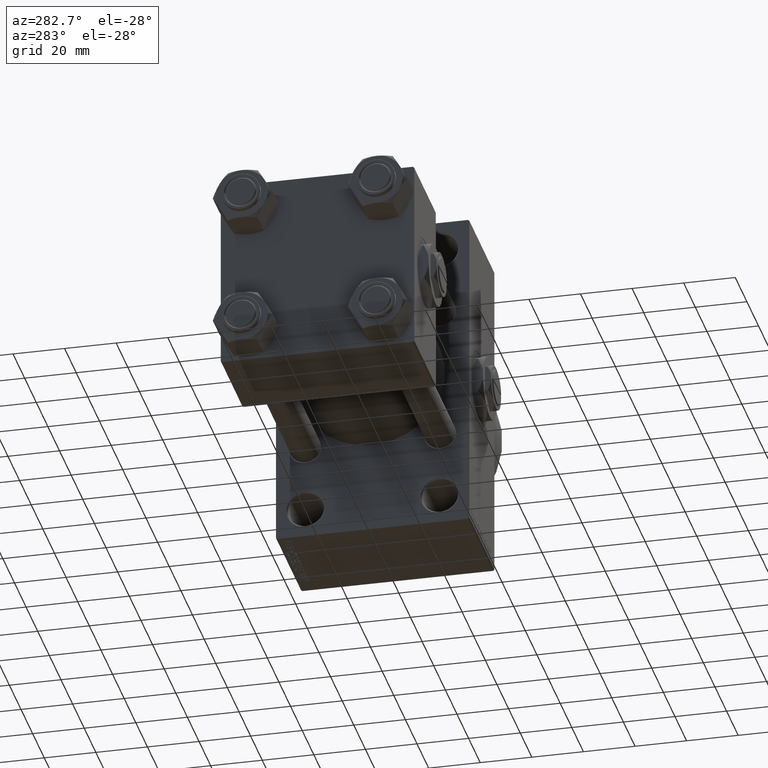
[diagram: clean part render]
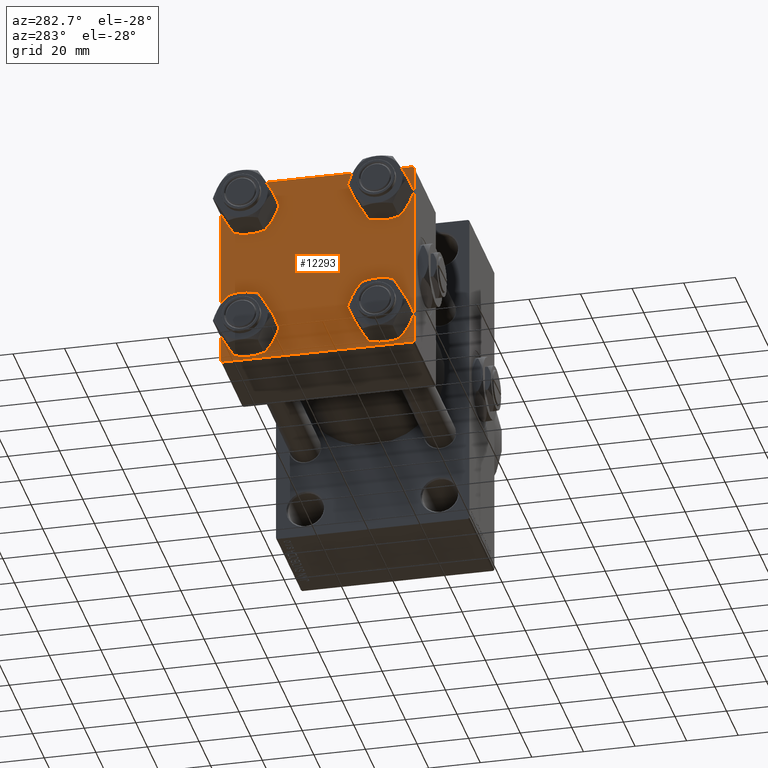
[diagram: same view with one face highlighted and labeled with its STEP entity id]
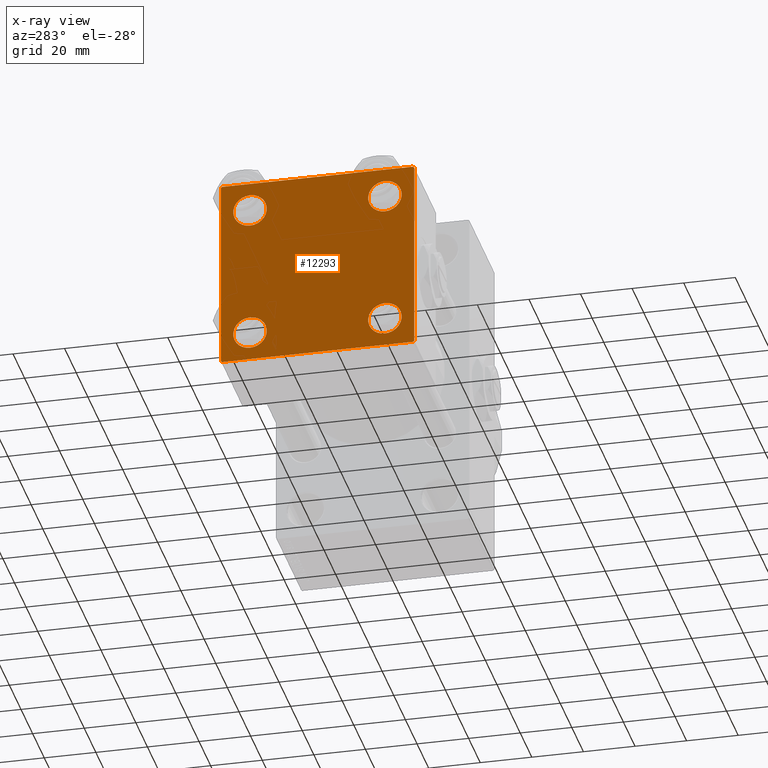
[diagram: x-ray of the same camera — body ghosted, the highlighted face saturated]
A machine part, auxiliary view. The second image highlights one B-rep face of the part: STEP entity #12293.
The next image is the same camera in x-ray: the body ghosted, the highlighted face saturated — about 0% of this face is hidden behind the body in this view.
In plain terms, the highlighted planar face has unit normal (-1, 0, 0).
Its self-contained STEP definition (entity closure, byte-faithful):
#125 = DIRECTION ( 'NONE',  ( 0.000000000000000000, 9.251858538542971581E-17, -1.000000000000000000 ) ) ;
#215 = DIRECTION ( 'NONE',  ( 0.000000000000000000, 0.000000000000000000, 1.000000000000000000 ) ) ;
#319 = ORIENTED_EDGE ( 'NONE', *, *, #36964, .T. ) ;
#346 = CARTESIAN_POINT ( 'NONE',  ( 0.000000000000000000, 37.49999999999999289, -37.50000000000000000 ) ) ;
#353 = LINE ( 'NONE', #15723, #43957 ) ;
#386 = EDGE_CURVE ( 'NONE', #18418, #16731, #14648, .T. ) ;
#393 = EDGE_LOOP ( 'NONE', ( #8873, #31301 ) ) ;
#627 = EDGE_CURVE ( 'NONE', #47455, #7098, #22640, .T. ) ;
#712 = DIRECTION ( 'NONE',  ( 1.000000000000000000, -0.000000000000000000, 0.000000000000000000 ) ) ;
#822 = LINE ( 'NONE', #24480, #38714 ) ;
#926 = AXIS2_PLACEMENT_3D ( 'NONE', #9315, #25420, #6048 ) ;
#1008 = ORIENTED_EDGE ( 'NONE', *, *, #29221, .T. ) ;
#1362 = DIRECTION ( 'NONE',  ( 1.000000000000000000, -0.000000000000000000, 0.000000000000000000 ) ) ;
#1428 = CARTESIAN_POINT ( 'NONE',  ( 0.000000000000000000, -37.50000000000000000, -37.00000000000003553 ) ) ;
#1781 = AXIS2_PLACEMENT_3D ( 'NONE', #47323, #24698, #35761 ) ;
#1979 = FACE_BOUND ( 'NONE', #40593, .T. ) ;
#2988 = EDGE_CURVE ( 'NONE', #7098, #47455, #11503, .T. ) ;
#3157 = ORIENTED_EDGE ( 'NONE', *, *, #41333, .T. ) ;
#4506 = CIRCLE ( 'NONE', #43055, 6.500000000000023093 ) ;
#4902 = EDGE_CURVE ( 'NONE', #5521, #32452, #29141, .T. ) ;
#4998 = CARTESIAN_POINT ( 'NONE',  ( 0.000000000000000000, -26.14999999999999147, 32.65000000000003411 ) ) ;
#5475 = DIRECTION ( 'NONE',  ( 0.000000000000000000, 0.000000000000000000, 1.000000000000000000 ) ) ;
#5521 = VERTEX_POINT ( 'NONE', #47948 ) ;
#5930 = AXIS2_PLACEMENT_3D ( 'NONE', #24039, #1362, #47403 ) ;
#6048 = DIRECTION ( 'NONE',  ( 0.000000000000000000, 0.000000000000000000, 1.000000000000000000 ) ) ;
#6110 = VERTEX_POINT ( 'NONE', #22105 ) ;
#6145 = EDGE_LOOP ( 'NONE', ( #32078, #13589 ) ) ;
#6362 = DIRECTION ( 'NONE',  ( 1.000000000000000000, -0.000000000000000000, 0.000000000000000000 ) ) ;
#6380 = LINE ( 'NONE', #21725, #19014 ) ;
#6516 = FACE_OUTER_BOUND ( 'NONE', #23099, .T. ) ;
#7098 = VERTEX_POINT ( 'NONE', #20177 ) ;
#7684 = CARTESIAN_POINT ( 'NONE',  ( 0.000000000000000000, -37.50000000000000711, 37.49999999999999289 ) ) ;
#8271 = CARTESIAN_POINT ( 'NONE',  ( 0.000000000000000000, -26.14999999999999147, 26.15000000000000924 ) ) ;
#8682 = DIRECTION ( 'NONE',  ( 0.000000000000000000, 0.7071067811865474617, -0.7071067811865474617 ) ) ;
#8818 = CARTESIAN_POINT ( 'NONE',  ( 0.000000000000000000, -26.14999999999999147, 19.64999999999999147 ) ) ;
#8873 = ORIENTED_EDGE ( 'NONE', *, *, #21409, .T. ) ;
#9145 = DIRECTION ( 'NONE',  ( -0.000000000000000000, 0.7071067811865474617, 0.7071067811865474617 ) ) ;
#9315 = CARTESIAN_POINT ( 'NONE',  ( 0.000000000000000000, 26.14999999999999858, 26.15000000000000213 ) ) ;
#10466 = CARTESIAN_POINT ( 'NONE',  ( 0.000000000000000000, 36.99999999999997868, -37.50000000000000000 ) ) ;
#10502 = CARTESIAN_POINT ( 'NONE',  ( 0.000000000000000000, 37.49999999999999289, -36.99999999999998579 ) ) ;
#10798 = VERTEX_POINT ( 'NONE', #28567 ) ;
#11503 = CIRCLE ( 'NONE', #49267, 6.500000000000023093 ) ;
#12293 = ADVANCED_FACE ( 'NONE', ( #1979, #25655, #48028, #21861, #6516 ), #48267, .T. ) ;
#12683 = LINE ( 'NONE', #32288, #48701 ) ;
#13384 = CIRCLE ( 'NONE', #18187, 6.500000000000015987 ) ;
#13553 = EDGE_CURVE ( 'NONE', #6110, #41762, #13384, .T. ) ;
#13589 = ORIENTED_EDGE ( 'NONE', *, *, #13553, .T. ) ;
#13833 = DIRECTION ( 'NONE',  ( -0.000000000000000000, 0.000000000000000000, 1.000000000000000000 ) ) ;
#14648 = CIRCLE ( 'NONE', #42720, 6.500000000000023093 ) ;
#14961 = CARTESIAN_POINT ( 'NONE',  ( 0.000000000000000000, 26.14999999999999858, 26.15000000000000213 ) ) ;
#14962 = VERTEX_POINT ( 'NONE', #43925 ) ;
#15723 = CARTESIAN_POINT ( 'NONE',  ( 0.000000000000000000, 37.49999999999999289, 37.50000000000000000 ) ) ;
#16124 = VERTEX_POINT ( 'NONE', #1428 ) ;
#16298 = CARTESIAN_POINT ( 'NONE',  ( 0.000000000000000000, -37.00000000000002132, -37.50000000000000711 ) ) ;
#16731 = VERTEX_POINT ( 'NONE', #8818 ) ;
#18187 = AXIS2_PLACEMENT_3D ( 'NONE', #20571, #27875, #5475 ) ;
#18418 = VERTEX_POINT ( 'NONE', #4998 ) ;
#19014 = VECTOR ( 'NONE', #37039, 1000.000000000000114 ) ;
#20177 = CARTESIAN_POINT ( 'NONE',  ( 0.000000000000000000, 26.14999999999999858, 32.65000000000002700 ) ) ;
#20316 = VECTOR ( 'NONE', #8682, 1000.000000000000114 ) ;
#20571 = CARTESIAN_POINT ( 'NONE',  ( 0.000000000000000000, 26.14999999999999858, -26.15000000000000213 ) ) ;
#20722 = EDGE_CURVE ( 'NONE', #10798, #16124, #35360, .T. ) ;
#21409 = EDGE_CURVE ( 'NONE', #32452, #5521, #44014, .T. ) ;
#21725 = CARTESIAN_POINT ( 'NONE',  ( 0.000000000000000000, 37.24999999999998579, -37.24999999999998579 ) ) ;
#21861 = FACE_BOUND ( 'NONE', #34094, .T. ) ;
#22105 = CARTESIAN_POINT ( 'NONE',  ( 0.000000000000000000, 26.14999999999999858, -32.65000000000001990 ) ) ;
#22127 = CARTESIAN_POINT ( 'NONE',  ( 0.000000000000000000, -26.14999999999999147, -19.64999999999999503 ) ) ;
#22640 = CIRCLE ( 'NONE', #926, 6.500000000000023093 ) ;
#23026 = VERTEX_POINT ( 'NONE', #35344 ) ;
#23073 = CARTESIAN_POINT ( 'NONE',  ( 0.000000000000000000, 26.14999999999999858, -19.64999999999998792 ) ) ;
#23099 = EDGE_LOOP ( 'NONE', ( #35434, #3157, #40161, #48579, #26201, #319, #28452, #1008 ) ) ;
#23426 = VERTEX_POINT ( 'NONE', #16298 ) ;
#24039 = CARTESIAN_POINT ( 'NONE',  ( 0.000000000000000000, 26.14999999999999858, -26.15000000000000213 ) ) ;
#24278 = ORIENTED_EDGE ( 'NONE', *, *, #386, .T. ) ;
#24480 = CARTESIAN_POINT ( 'NONE',  ( 0.000000000000000000, 37.49999999999999289, 37.50000000000000000 ) ) ;
#24698 = DIRECTION ( 'NONE',  ( 1.000000000000000000, -0.000000000000000000, 0.000000000000000000 ) ) ;
#24968 = EDGE_CURVE ( 'NONE', #23026, #47375, #822, .T. ) ;
#25420 = DIRECTION ( 'NONE',  ( 1.000000000000000000, -0.000000000000000000, 0.000000000000000000 ) ) ;
#25583 = CARTESIAN_POINT ( 'NONE',  ( 0.000000000000000000, -37.00000000000000711, 37.49999999999999289 ) ) ;
#25655 = FACE_BOUND ( 'NONE', #393, .T. ) ;
#25853 = DIRECTION ( 'NONE',  ( 0.000000000000000000, -0.7071067811865524577, 0.7071067811865426878 ) ) ;
#26038 = DIRECTION ( 'NONE',  ( 0.000000000000000000, 0.000000000000000000, 1.000000000000000000 ) ) ;
#26201 = ORIENTED_EDGE ( 'NONE', *, *, #20722, .F. ) ;
#26332 = VECTOR ( 'NONE', #125, 1000.000000000000000 ) ;
#26346 = CARTESIAN_POINT ( 'NONE',  ( 0.000000000000000000, -37.24999999999975842, -37.25000000000027001 ) ) ;
#26454 = DIRECTION ( 'NONE',  ( 1.000000000000000000, -0.000000000000000000, 0.000000000000000000 ) ) ;
#27196 = CARTESIAN_POINT ( 'NONE',  ( 0.000000000000000000, -26.14999999999999147, -26.15000000000000924 ) ) ;
#27612 = CIRCLE ( 'NONE', #5930, 6.500000000000015987 ) ;
#27875 = DIRECTION ( 'NONE',  ( 1.000000000000000000, -0.000000000000000000, 0.000000000000000000 ) ) ;
#28452 = ORIENTED_EDGE ( 'NONE', *, *, #42187, .F. ) ;
#28474 = ORIENTED_EDGE ( 'NONE', *, *, #627, .T. ) ;
#28567 = CARTESIAN_POINT ( 'NONE',  ( 0.000000000000000000, -37.50000000000000711, 36.99999999999999289 ) ) ;
#29141 = CIRCLE ( 'NONE', #1781, 6.500000000000015987 ) ;
#29221 = EDGE_CURVE ( 'NONE', #14962, #23026, #35353, .T. ) ;
#29248 = CARTESIAN_POINT ( 'NONE',  ( 0.000000000000000000, -26.14999999999999147, 26.15000000000000924 ) ) ;
#30533 = VECTOR ( 'NONE', #25853, 1000.000000000000000 ) ;
#31048 = VECTOR ( 'NONE', #38332, 1000.000000000000000 ) ;
#31301 = ORIENTED_EDGE ( 'NONE', *, *, #4902, .T. ) ;
#31529 = DIRECTION ( 'NONE',  ( 0.000000000000000000, 0.000000000000000000, -1.000000000000000000 ) ) ;
#31756 = EDGE_CURVE ( 'NONE', #41762, #6110, #27612, .T. ) ;
#32078 = ORIENTED_EDGE ( 'NONE', *, *, #31756, .T. ) ;
#32288 = CARTESIAN_POINT ( 'NONE',  ( -0.000000000000000000, -37.25000000000000000, 37.25000000000000000 ) ) ;
#32452 = VERTEX_POINT ( 'NONE', #22127 ) ;
#32591 = AXIS2_PLACEMENT_3D ( 'NONE', #44244, #48510, #13833 ) ;
#34094 = EDGE_LOOP ( 'NONE', ( #34566, #28474 ) ) ;
#34566 = ORIENTED_EDGE ( 'NONE', *, *, #2988, .T. ) ;
#35083 = DIRECTION ( 'NONE',  ( 0.000000000000000000, -1.000000000000000000, -9.251858538542971581E-17 ) ) ;
#35344 = CARTESIAN_POINT ( 'NONE',  ( 0.000000000000000000, 37.49999999999999289, 37.00000000000000000 ) ) ;
#35353 = LINE ( 'NONE', #42875, #20316 ) ;
#35360 = LINE ( 'NONE', #7684, #26332 ) ;
#35434 = ORIENTED_EDGE ( 'NONE', *, *, #24968, .T. ) ;
#35761 = DIRECTION ( 'NONE',  ( 0.000000000000000000, 0.000000000000000000, 1.000000000000000000 ) ) ;
#36848 = VERTEX_POINT ( 'NONE', #25583 ) ;
#36964 = EDGE_CURVE ( 'NONE', #10798, #36848, #12683, .T. ) ;
#37039 = DIRECTION ( 'NONE',  ( -0.000000000000000000, -0.7071067811865474617, -0.7071067811865474617 ) ) ;
#38261 = VERTEX_POINT ( 'NONE', #10466 ) ;
#38332 = DIRECTION ( 'NONE',  ( 0.000000000000000000, -1.000000000000000000, -9.251858538542972814E-17 ) ) ;
#38714 = VECTOR ( 'NONE', #31529, 1000.000000000000000 ) ;
#40161 = ORIENTED_EDGE ( 'NONE', *, *, #40996, .T. ) ;
#40250 = EDGE_CURVE ( 'NONE', #16731, #18418, #4506, .T. ) ;
#40553 = DIRECTION ( 'NONE',  ( 0.000000000000000000, 0.000000000000000000, 1.000000000000000000 ) ) ;
#40593 = EDGE_LOOP ( 'NONE', ( #24278, #45869 ) ) ;
#40929 = LINE ( 'NONE', #26346, #30533 ) ;
#40996 = EDGE_CURVE ( 'NONE', #38261, #23426, #49408, .T. ) ;
#41333 = EDGE_CURVE ( 'NONE', #47375, #38261, #6380, .T. ) ;
#41762 = VERTEX_POINT ( 'NONE', #23073 ) ;
#41770 = DIRECTION ( 'NONE',  ( 0.000000000000000000, 0.000000000000000000, 1.000000000000000000 ) ) ;
#42187 = EDGE_CURVE ( 'NONE', #14962, #36848, #353, .T. ) ;
#42720 = AXIS2_PLACEMENT_3D ( 'NONE', #29248, #6362, #40553 ) ;
#42875 = CARTESIAN_POINT ( 'NONE',  ( 0.000000000000000000, 37.24999999999999289, 37.24999999999999289 ) ) ;
#43055 = AXIS2_PLACEMENT_3D ( 'NONE', #8271, #712, #215 ) ;
#43925 = CARTESIAN_POINT ( 'NONE',  ( 0.000000000000000000, 36.99999999999999289, 37.50000000000000000 ) ) ;
#43957 = VECTOR ( 'NONE', #35083, 1000.000000000000000 ) ;
#44014 = CIRCLE ( 'NONE', #47211, 6.500000000000015987 ) ;
#44244 = CARTESIAN_POINT ( 'NONE',  ( 0.000000000000000000, 0.000000000000000000, 0.000000000000000000 ) ) ;
#44640 = DIRECTION ( 'NONE',  ( 1.000000000000000000, -0.000000000000000000, 0.000000000000000000 ) ) ;
#45869 = ORIENTED_EDGE ( 'NONE', *, *, #40250, .T. ) ;
#46668 = CARTESIAN_POINT ( 'NONE',  ( 0.000000000000000000, 26.14999999999999858, 19.64999999999998437 ) ) ;
#47211 = AXIS2_PLACEMENT_3D ( 'NONE', #27196, #26454, #41770 ) ;
#47323 = CARTESIAN_POINT ( 'NONE',  ( 0.000000000000000000, -26.14999999999999147, -26.15000000000000924 ) ) ;
#47375 = VERTEX_POINT ( 'NONE', #10502 ) ;
#47403 = DIRECTION ( 'NONE',  ( 0.000000000000000000, 0.000000000000000000, 1.000000000000000000 ) ) ;
#47455 = VERTEX_POINT ( 'NONE', #46668 ) ;
#47948 = CARTESIAN_POINT ( 'NONE',  ( 0.000000000000000000, -26.14999999999999147, -32.65000000000002700 ) ) ;
#48028 = FACE_BOUND ( 'NONE', #6145, .T. ) ;
#48114 = EDGE_CURVE ( 'NONE', #23426, #16124, #40929, .T. ) ;
#48267 = PLANE ( 'NONE',  #32591 ) ;
#48510 = DIRECTION ( 'NONE',  ( -1.000000000000000000, 0.000000000000000000, -0.000000000000000000 ) ) ;
#48579 = ORIENTED_EDGE ( 'NONE', *, *, #48114, .T. ) ;
#48701 = VECTOR ( 'NONE', #9145, 1000.000000000000114 ) ;
#49267 = AXIS2_PLACEMENT_3D ( 'NONE', #14961, #44640, #26038 ) ;
#49408 = LINE ( 'NONE', #346, #31048 ) ;